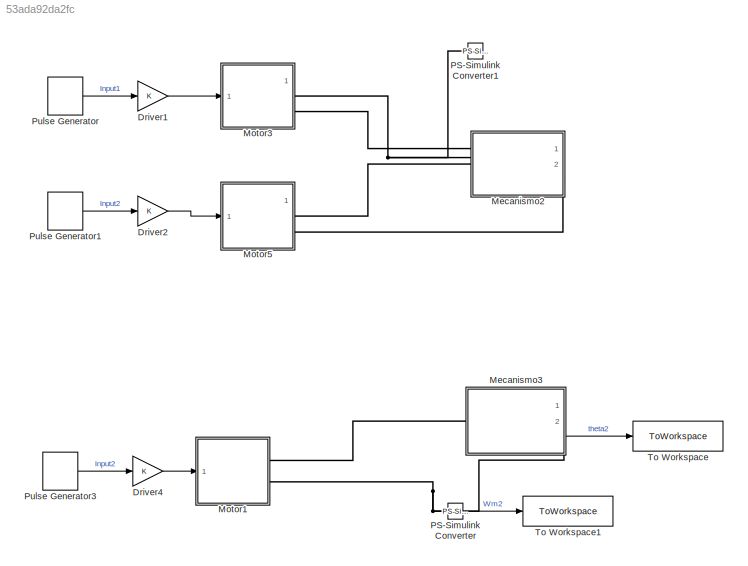
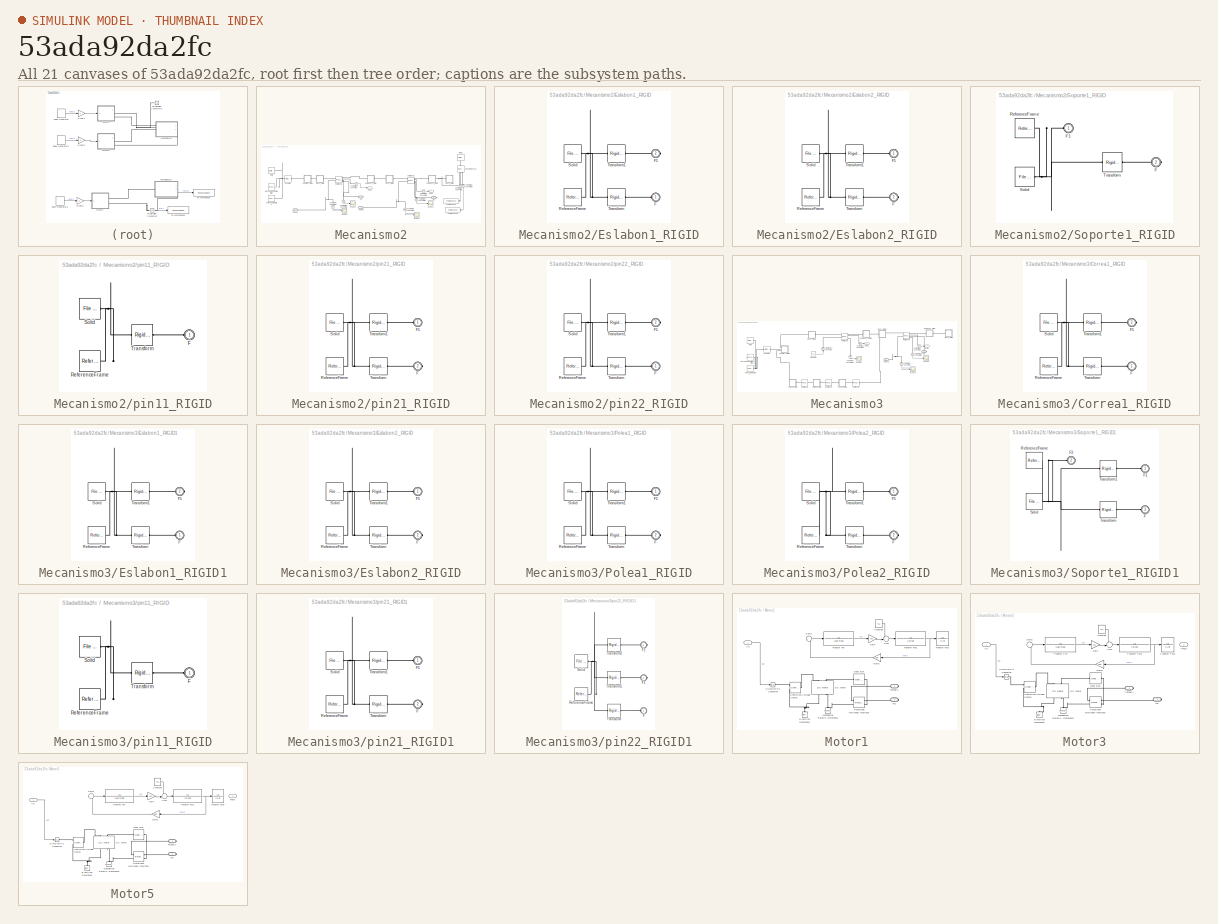
[diagram: thumbnail index - all 21 canvases of the model, root first then tree order]
MODEL slx_53ada92da2fc
KIND model
CONFIG AbsTol = auto
CONFIG EnableMultiTasking = off
CONFIG FixedStep = auto
CONFIG MaxStep = 0.20800000000000002
CONFIG MinStep = auto
CONFIG RelTol = 1e-4
CONFIG SampleTimeConstraint = Unconstrained
CONFIG SolverName = ode45
CONFIG StartTime = 0.0
CONFIG StopTime = 0.2
WORKSPACE source: external: MATLAB File  (data not in archive)
BLOCK [Gain] Driver1
  Commented = on
BLOCK [Gain] Driver2
  Commented = on
BLOCK [Gain] Driver4
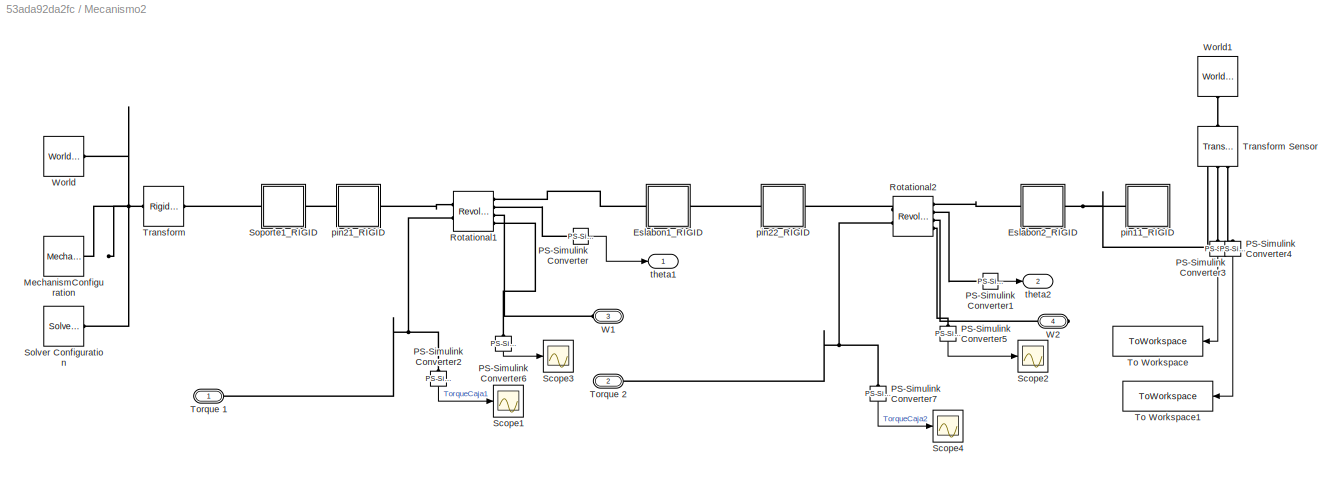
BLOCK [SubSystem] Mecanismo2
  Commented = on
  PortSchema = {"entries":[{"content":{"sides":[{"content":{"connectorIds":["LConn1","LConn2"]},"type":"ConnectorPlacement.EquallySpacedRectSide","uuid":"9c71d8fd-fbe0-4f3c-9468-4cd11dffeed7"},{"content":{"connectorIds":["Out1","Out2"],"side":"RIGHT"},"type":"ConnectorPlacement.EquallySpacedRectSide","uuid":"5c6e91e5-ecd9-462c-8e86-99a56f5a5e98"},{"content":{"connectorIds":["LConn3"],"side":"TOP"},"type":"Connec...<+419ch>
  Ports = [0, 2, 0, 0, 0, 3, 1]
  RequestExecContextInheritance = off
BLOCK [SubSystem] Mecanismo2/Eslabon1_RIGID
  Ports = [0, 0, 0, 0, 0, 1, 1]
  RequestExecContextInheritance = off
BLOCK [PMIOPort] Mecanismo2/Eslabon1_RIGID/F
  Side = Left
BLOCK [PMIOPort] Mecanismo2/Eslabon1_RIGID/F1
  Port = 2
  Side = Right
BLOCK [Reference] Mecanismo2/Eslabon1_RIGID/ReferenceFrame  REF=sm_lib/Frames and
Transforms/Reference
Frame
  Ports = [0, 0, 0, 0, 0, 0, 1]
  SourceBlock = sm_lib/Frames and\nTransforms/Reference\nFrame
  SourceProductBaseCode = MS
  SourceType = Reference\nFrame
BLOCK [Reference] Mecanismo2/Eslabon1_RIGID/Solid  REF=sm_lib/Body Elements/File Solid
  Ports = [0, 0, 0, 0, 0, 0, 1]
  SourceBlock = sm_lib/Body Elements/File Solid
  SourceProductBaseCode = MS
  SourceType = File Solid
BLOCK [Reference] Mecanismo2/Eslabon1_RIGID/Transform  REF=sm_lib/Frames and
Transforms/Rigid
Transform
  Ports = [0, 0, 0, 0, 0, 1, 1]
  SourceBlock = sm_lib/Frames and\nTransforms/Rigid\nTransform
  SourceProductBaseCode = MS
  SourceType = Rigid\nTransform
BLOCK [Reference] Mecanismo2/Eslabon1_RIGID/Transform1  REF=sm_lib/Frames and
Transforms/Rigid
Transform
  Ports = [0, 0, 0, 0, 0, 1, 1]
  SourceBlock = sm_lib/Frames and\nTransforms/Rigid\nTransform
  SourceProductBaseCode = MS
  SourceType = Rigid\nTransform
BLOCK [SubSystem] Mecanismo2/Eslabon2_RIGID
  Ports = [0, 0, 0, 0, 0, 1, 1]
  RequestExecContextInheritance = off
BLOCK [PMIOPort] Mecanismo2/Eslabon2_RIGID/F
  Port = 2
  Side = Right
BLOCK [PMIOPort] Mecanismo2/Eslabon2_RIGID/F1
  Side = Left
BLOCK [Reference] Mecanismo2/Eslabon2_RIGID/ReferenceFrame  REF=sm_lib/Frames and
Transforms/Reference
Frame
  Ports = [0, 0, 0, 0, 0, 0, 1]
  SourceBlock = sm_lib/Frames and\nTransforms/Reference\nFrame
  SourceProductBaseCode = MS
  SourceType = Reference\nFrame
BLOCK [Reference] Mecanismo2/Eslabon2_RIGID/Solid  REF=sm_lib/Body Elements/File Solid
  Ports = [0, 0, 0, 0, 0, 0, 1]
  SourceBlock = sm_lib/Body Elements/File Solid
  SourceProductBaseCode = MS
  SourceType = File Solid
BLOCK [Reference] Mecanismo2/Eslabon2_RIGID/Transform  REF=sm_lib/Frames and
Transforms/Rigid
Transform
  Ports = [0, 0, 0, 0, 0, 1, 1]
  SourceBlock = sm_lib/Frames and\nTransforms/Rigid\nTransform
  SourceProductBaseCode = MS
  SourceType = Rigid\nTransform
BLOCK [Reference] Mecanismo2/Eslabon2_RIGID/Transform1  REF=sm_lib/Frames and
Transforms/Rigid
Transform
  Ports = [0, 0, 0, 0, 0, 1, 1]
  SourceBlock = sm_lib/Frames and\nTransforms/Rigid\nTransform
  SourceProductBaseCode = MS
  SourceType = Rigid\nTransform
BLOCK [Reference] Mecanismo2/MechanismConfiguration  REF=sm_lib/Utilities/Mechanism
Configuration
  Ports = [0, 0, 0, 0, 0, 0, 1]
  SourceBlock = sm_lib/Utilities/Mechanism\nConfiguration
  SourceProductBaseCode = MS
  SourceType = Mechanism\nConfiguration
BLOCK [Reference] Mecanismo2/PS-Simulink Converter  REF=nesl_utility/PS-Simulink
Converter
  Ports = [0, 1, 0, 0, 0, 1]
  SourceBlock = nesl_utility/PS-Simulink\nConverter
  SourceProductBaseCode = PW,SS
  SourceType = PS-Simulink\nConverter
BLOCK [Reference] Mecanismo2/PS-Simulink Converter1  REF=nesl_utility/PS-Simulink
Converter
  Ports = [0, 1, 0, 0, 0, 1]
  SourceBlock = nesl_utility/PS-Simulink\nConverter
  SourceProductBaseCode = PW,SS
  SourceType = PS-Simulink\nConverter
BLOCK [Reference] Mecanismo2/PS-Simulink Converter2  REF=nesl_utility/PS-Simulink
Converter
  NameLocation = left
  Ports = [0, 1, 0, 0, 0, 1]
  SourceBlock = nesl_utility/PS-Simulink\nConverter
  SourceProductBaseCode = PW,SS
  SourceType = PS-Simulink\nConverter
BLOCK [Reference] Mecanismo2/PS-Simulink Converter3  REF=nesl_utility/PS-Simulink
Converter
  NameLocation = left
  Ports = [0, 1, 0, 0, 0, 1]
  SourceBlock = nesl_utility/PS-Simulink\nConverter
  SourceProductBaseCode = PW,SS
  SourceType = PS-Simulink\nConverter
BLOCK [Reference] Mecanismo2/PS-Simulink Converter4  REF=nesl_utility/PS-Simulink
Converter
  NameLocation = left
  Ports = [0, 1, 0, 0, 0, 1]
  SourceBlock = nesl_utility/PS-Simulink\nConverter
  SourceProductBaseCode = PW,SS
  SourceType = PS-Simulink\nConverter
BLOCK [Reference] Mecanismo2/PS-Simulink Converter5  REF=nesl_utility/PS-Simulink
Converter
  NameLocation = left
  Ports = [0, 1, 0, 0, 0, 1]
  SourceBlock = nesl_utility/PS-Simulink\nConverter
  SourceProductBaseCode = PW,SS
  SourceType = PS-Simulink\nConverter
BLOCK [Reference] Mecanismo2/PS-Simulink Converter6  REF=nesl_utility/PS-Simulink
Converter
  NameLocation = left
  Ports = [0, 1, 0, 0, 0, 1]
  SourceBlock = nesl_utility/PS-Simulink\nConverter
  SourceProductBaseCode = PW,SS
  SourceType = PS-Simulink\nConverter
BLOCK [Reference] Mecanismo2/PS-Simulink Converter7  REF=nesl_utility/PS-Simulink
Converter
  NameLocation = left
  Ports = [0, 1, 0, 0, 0, 1]
  SourceBlock = nesl_utility/PS-Simulink\nConverter
  SourceProductBaseCode = PW,SS
  SourceType = PS-Simulink\nConverter
BLOCK [Reference] Mecanismo2/Rotational1  REF=sm_lib/Joints/Revolute Joint
  Ports = [0, 0, 0, 0, 0, 2, 4]
  SourceBlock = sm_lib/Joints/Revolute Joint
  SourceProductBaseCode = MS
  SourceType = Revolute Joint
BLOCK [Reference] Mecanismo2/Rotational2  REF=sm_lib/Joints/Revolute Joint
  Ports = [0, 0, 0, 0, 0, 2, 4]
  SourceBlock = sm_lib/Joints/Revolute Joint
  SourceProductBaseCode = MS
  SourceType = Revolute Joint
BLOCK [Scope] Mecanismo2/Scope1
  Floating = off
  NumInputPorts = 1
  Ports = [1]
  ScopeSpecificationString = Simulink.scopes.TimeScopeBlockCfg('CurrentConfiguration', extmgr.ConfigurationSet(extmgr.Configuration('Core','General UI',true),extmgr.Configuration('Core','Source UI',true),extmgr.Configuration('Sources','WiredSimulink',true,'DataLoggingVariableName','ScopeData1'),extmgr.Configuration('Visuals','Time Domain',true,'SerializedDisplays',{struct('MinYLimReal','-12.39709','MaxYLimReal','13.11522','YL...<+1449ch>
BLOCK [Scope] Mecanismo2/Scope2
  Floating = off
  NumInputPorts = 1
  Ports = [1]
  ScopeSpecificationString = Simulink.scopes.TimeScopeBlockCfg('CurrentConfiguration', extmgr.ConfigurationSet(extmgr.Configuration('Core','General UI',true),extmgr.Configuration('Core','Source UI',true),extmgr.Configuration('Sources','WiredSimulink',true,'DataLoggingVariableName','ScopeData2'),extmgr.Configuration('Visuals','Time Domain',true,'SerializedDisplays',{struct('MinYLimReal','-0.05482','MaxYLimReal','0.08539','YLab...<+1381ch>
BLOCK [Scope] Mecanismo2/Scope3
  Floating = off
  NumInputPorts = 1
  Ports = [1]
  ScopeSpecificationString = Simulink.scopes.TimeScopeBlockCfg('CurrentConfiguration', extmgr.ConfigurationSet(extmgr.Configuration('Core','General UI',true),extmgr.Configuration('Core','Source UI',true),extmgr.Configuration('Sources','WiredSimulink',true,'DataLoggingVariableName','ScopeData3'),extmgr.Configuration('Visuals','Time Domain',true,'SerializedDisplays',{struct('MinYLimReal','-12.39709','MaxYLimReal','13.11522','YL...<+1460ch>
BLOCK [Scope] Mecanismo2/Scope4
  Floating = off
  NumInputPorts = 1
  Ports = [1]
  ScopeSpecificationString = Simulink.scopes.TimeScopeBlockCfg('CurrentConfiguration', extmgr.ConfigurationSet(extmgr.Configuration('Core','General UI',true),extmgr.Configuration('Core','Source UI',true),extmgr.Configuration('Sources','WiredSimulink',true,'DataLoggingVariableName','ScopeData2'),extmgr.Configuration('Visuals','Time Domain',true,'SerializedDisplays',{struct('MinYLimReal','-1.00000','MaxYLimReal','1.00000','YLab...<+1443ch>
BLOCK [Reference] Mecanismo2/Solver Configuration  REF=nesl_utility/Solver
Configuration
  Ports = [0, 0, 0, 0, 0, 0, 1]
  SourceBlock = nesl_utility/Solver\nConfiguration
  SourceProductBaseCode = PW,SS
  SourceType = Solver\nConfiguration
BLOCK [SubSystem] Mecanismo2/Soporte1_RIGID
  Ports = [0, 0, 0, 0, 0, 1, 1]
  RequestExecContextInheritance = off
BLOCK [PMIOPort] Mecanismo2/Soporte1_RIGID/F
  Port = 2
  Side = Right
BLOCK [PMIOPort] Mecanismo2/Soporte1_RIGID/F1
  Side = Left
BLOCK [Reference] Mecanismo2/Soporte1_RIGID/ReferenceFrame  REF=sm_lib/Frames and
Transforms/Reference
Frame
  Ports = [0, 0, 0, 0, 0, 0, 1]
  SourceBlock = sm_lib/Frames and\nTransforms/Reference\nFrame
  SourceProductBaseCode = MS
  SourceType = Reference\nFrame
BLOCK [Reference] Mecanismo2/Soporte1_RIGID/Solid  REF=sm_lib/Body Elements/File Solid
  Ports = [0, 0, 0, 0, 0, 0, 1]
  SourceBlock = sm_lib/Body Elements/File Solid
  SourceProductBaseCode = MS
  SourceType = File Solid
BLOCK [Reference] Mecanismo2/Soporte1_RIGID/Transform  REF=sm_lib/Frames and
Transforms/Rigid
Transform
  Ports = [0, 0, 0, 0, 0, 1, 1]
  SourceBlock = sm_lib/Frames and\nTransforms/Rigid\nTransform
  SourceProductBaseCode = MS
  SourceType = Rigid\nTransform
BLOCK [ToWorkspace] Mecanismo2/To Workspace
  FixptAsFi = on
  MaxDataPoints = inf
  NameLocation = top
  Ports = [1]
  SampleTime = -1
  SaveFormat = Timeseries
  VariableName = xsim
BLOCK [ToWorkspace] Mecanismo2/To Workspace1
  FixptAsFi = on
  MaxDataPoints = inf
  NameLocation = top
  Ports = [1]
  SampleTime = -1
  SaveFormat = Timeseries
  VariableName = ysim
BLOCK [PMIOPort] Mecanismo2/Torque 1
  Side = Left
BLOCK [PMIOPort] Mecanismo2/Torque 2
  Port = 2
  Side = Left
BLOCK [Reference] Mecanismo2/Transform  REF=sm_lib/Frames and
Transforms/Rigid
Transform
  Ports = [0, 0, 0, 0, 0, 1, 1]
  SourceBlock = sm_lib/Frames and\nTransforms/Rigid\nTransform
  SourceProductBaseCode = MS
  SourceType = Rigid\nTransform
BLOCK [Reference] Mecanismo2/Transform Sensor  REF=sm_lib/Frames and
Transforms/Transform
Sensor
  NameLocation = left
  Ports = [0, 0, 0, 0, 0, 1, 3]
  SourceBlock = sm_lib/Frames and\nTransforms/Transform\nSensor
  SourceProductBaseCode = MS
  SourceType = Transform\nSensor
BLOCK [PMIOPort] Mecanismo2/W1
  NameLocation = top
  Port = 3
  Side = Left
BLOCK [PMIOPort] Mecanismo2/W2
  NameLocation = top
  Port = 4
  Side = Right
BLOCK [Reference] Mecanismo2/World  REF=sm_lib/Frames and
Transforms/World Frame
  Ports = [0, 0, 0, 0, 0, 0, 1]
  SourceBlock = sm_lib/Frames and\nTransforms/World Frame
  SourceProductBaseCode = MS
  SourceType = World Frame
BLOCK [Reference] Mecanismo2/World1  REF=sm_lib/Frames and
Transforms/World Frame
  NameLocation = left
  Ports = [0, 0, 0, 0, 0, 0, 1]
  SourceBlock = sm_lib/Frames and\nTransforms/World Frame
  SourceProductBaseCode = MS
  SourceType = World Frame
BLOCK [SubSystem] Mecanismo2/pin11_RIGID
  Ports = [0, 0, 0, 0, 0, 1]
  RequestExecContextInheritance = off
BLOCK [PMIOPort] Mecanismo2/pin11_RIGID/F
  Side = Left
BLOCK [Reference] Mecanismo2/pin11_RIGID/ReferenceFrame  REF=sm_lib/Frames and
Transforms/Reference
Frame
  Ports = [0, 0, 0, 0, 0, 0, 1]
  SourceBlock = sm_lib/Frames and\nTransforms/Reference\nFrame
  SourceProductBaseCode = MS
  SourceType = Reference\nFrame
BLOCK [Reference] Mecanismo2/pin11_RIGID/Solid  REF=sm_lib/Body Elements/File Solid
  Ports = [0, 0, 0, 0, 0, 0, 1]
  SourceBlock = sm_lib/Body Elements/File Solid
  SourceProductBaseCode = MS
  SourceType = File Solid
BLOCK [Reference] Mecanismo2/pin11_RIGID/Transform  REF=sm_lib/Frames and
Transforms/Rigid
Transform
  Ports = [0, 0, 0, 0, 0, 1, 1]
  SourceBlock = sm_lib/Frames and\nTransforms/Rigid\nTransform
  SourceProductBaseCode = MS
  SourceType = Rigid\nTransform
BLOCK [SubSystem] Mecanismo2/pin21_RIGID
  Ports = [0, 0, 0, 0, 0, 1, 1]
  RequestExecContextInheritance = off
BLOCK [PMIOPort] Mecanismo2/pin21_RIGID/F
  Port = 2
  Side = Right
BLOCK [PMIOPort] Mecanismo2/pin21_RIGID/F1
  Side = Left
BLOCK [Reference] Mecanismo2/pin21_RIGID/ReferenceFrame  REF=sm_lib/Frames and
Transforms/Reference
Frame
  Ports = [0, 0, 0, 0, 0, 0, 1]
  SourceBlock = sm_lib/Frames and\nTransforms/Reference\nFrame
  SourceProductBaseCode = MS
  SourceType = Reference\nFrame
BLOCK [Reference] Mecanismo2/pin21_RIGID/Solid  REF=sm_lib/Body Elements/File Solid
  Ports = [0, 0, 0, 0, 0, 0, 1]
  SourceBlock = sm_lib/Body Elements/File Solid
  SourceProductBaseCode = MS
  SourceType = File Solid
BLOCK [Reference] Mecanismo2/pin21_RIGID/Transform  REF=sm_lib/Frames and
Transforms/Rigid
Transform
  Ports = [0, 0, 0, 0, 0, 1, 1]
  SourceBlock = sm_lib/Frames and\nTransforms/Rigid\nTransform
  SourceProductBaseCode = MS
  SourceType = Rigid\nTransform
BLOCK [Reference] Mecanismo2/pin21_RIGID/Transform1  REF=sm_lib/Frames and
Transforms/Rigid
Transform
  Ports = [0, 0, 0, 0, 0, 1, 1]
  SourceBlock = sm_lib/Frames and\nTransforms/Rigid\nTransform
  SourceProductBaseCode = MS
  SourceType = Rigid\nTransform
BLOCK [SubSystem] Mecanismo2/pin22_RIGID
  Ports = [0, 0, 0, 0, 0, 1, 1]
  RequestExecContextInheritance = off
BLOCK [PMIOPort] Mecanismo2/pin22_RIGID/F
  Side = Left
BLOCK [PMIOPort] Mecanismo2/pin22_RIGID/F1
  Port = 2
  Side = Right
BLOCK [Reference] Mecanismo2/pin22_RIGID/ReferenceFrame  REF=sm_lib/Frames and
Transforms/Reference
Frame
  Ports = [0, 0, 0, 0, 0, 0, 1]
  SourceBlock = sm_lib/Frames and\nTransforms/Reference\nFrame
  SourceProductBaseCode = MS
  SourceType = Reference\nFrame
BLOCK [Reference] Mecanismo2/pin22_RIGID/Solid  REF=sm_lib/Body Elements/File Solid
  Ports = [0, 0, 0, 0, 0, 0, 1]
  SourceBlock = sm_lib/Body Elements/File Solid
  SourceProductBaseCode = MS
  SourceType = File Solid
BLOCK [Reference] Mecanismo2/pin22_RIGID/Transform  REF=sm_lib/Frames and
Transforms/Rigid
Transform
  Ports = [0, 0, 0, 0, 0, 1, 1]
  SourceBlock = sm_lib/Frames and\nTransforms/Rigid\nTransform
  SourceProductBaseCode = MS
  SourceType = Rigid\nTransform
BLOCK [Reference] Mecanismo2/pin22_RIGID/Transform1  REF=sm_lib/Frames and
Transforms/Rigid
Transform
  Ports = [0, 0, 0, 0, 0, 1, 1]
  SourceBlock = sm_lib/Frames and\nTransforms/Rigid\nTransform
  SourceProductBaseCode = MS
  SourceType = Rigid\nTransform
BLOCK [Outport] Mecanismo2/theta1
BLOCK [Outport] Mecanismo2/theta2
  Port = 2
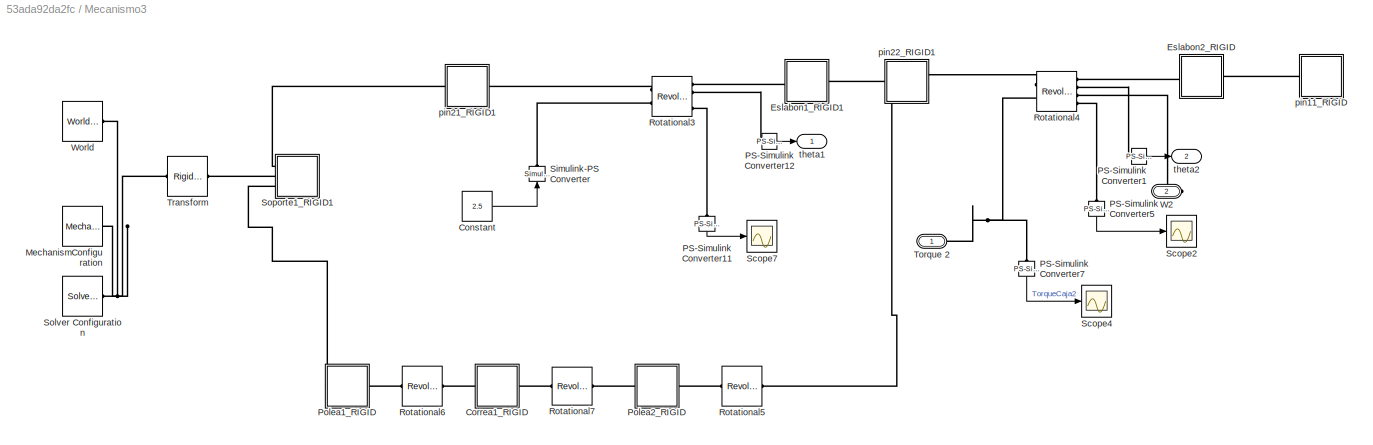
BLOCK [SubSystem] Mecanismo3
  PortSchema = {"entries":[{"content":{"sides":[{"content":{"connectorIds":["LConn1"]},"type":"ConnectorPlacement.EquallySpacedRectSide","uuid":"02f3228b-84f6-41b8-96a8-1160db6c1dba"},{"content":{"connectorIds":["Out1","Out2"],"side":"RIGHT"},"type":"ConnectorPlacement.EquallySpacedRectSide","uuid":"46c86bd6-6d26-4c5c-b634-3c72118c39e9"},{"content":{"connectorIds":[],"side":"TOP"},"type":"ConnectorPlacement.Equa...<+402ch>
  Ports = [0, 2, 0, 0, 0, 1, 1]
  RequestExecContextInheritance = off
BLOCK [Constant] Mecanismo3/Constant
  Value = 2.5
BLOCK [SubSystem] Mecanismo3/Correa1_RIGID
  Ports = [0, 0, 0, 0, 0, 1, 1]
  RequestExecContextInheritance = off
BLOCK [PMIOPort] Mecanismo3/Correa1_RIGID/F
  Side = Left
BLOCK [PMIOPort] Mecanismo3/Correa1_RIGID/F1
  Port = 2
  Side = Right
BLOCK [Reference] Mecanismo3/Correa1_RIGID/ReferenceFrame  REF=sm_lib/Frames and
Transforms/Reference
Frame
  Ports = [0, 0, 0, 0, 0, 0, 1]
  SourceBlock = sm_lib/Frames and\nTransforms/Reference\nFrame
  SourceProductBaseCode = MS
  SourceType = Reference\nFrame
BLOCK [Reference] Mecanismo3/Correa1_RIGID/Solid  REF=sm_lib/Body Elements/File Solid
  Ports = [0, 0, 0, 0, 0, 0, 1]
  SourceBlock = sm_lib/Body Elements/File Solid
  SourceProductBaseCode = MS
  SourceType = File Solid
BLOCK [Reference] Mecanismo3/Correa1_RIGID/Transform  REF=sm_lib/Frames and
Transforms/Rigid
Transform
  Ports = [0, 0, 0, 0, 0, 1, 1]
  SourceBlock = sm_lib/Frames and\nTransforms/Rigid\nTransform
  SourceProductBaseCode = MS
  SourceType = Rigid\nTransform
BLOCK [Reference] Mecanismo3/Correa1_RIGID/Transform1  REF=sm_lib/Frames and
Transforms/Rigid
Transform
  Ports = [0, 0, 0, 0, 0, 1, 1]
  SourceBlock = sm_lib/Frames and\nTransforms/Rigid\nTransform
  SourceProductBaseCode = MS
  SourceType = Rigid\nTransform
BLOCK [SubSystem] Mecanismo3/Eslabon1_RIGID1
  Ports = [0, 0, 0, 0, 0, 1, 1]
  RequestExecContextInheritance = off
BLOCK [PMIOPort] Mecanismo3/Eslabon1_RIGID1/F
  Side = Left
BLOCK [PMIOPort] Mecanismo3/Eslabon1_RIGID1/F1
  Port = 2
  Side = Right
BLOCK [Reference] Mecanismo3/Eslabon1_RIGID1/ReferenceFrame  REF=sm_lib/Frames and
Transforms/Reference
Frame
  Ports = [0, 0, 0, 0, 0, 0, 1]
  SourceBlock = sm_lib/Frames and\nTransforms/Reference\nFrame
  SourceProductBaseCode = MS
  SourceType = Reference\nFrame
BLOCK [Reference] Mecanismo3/Eslabon1_RIGID1/Solid  REF=sm_lib/Body Elements/File Solid
  Ports = [0, 0, 0, 0, 0, 0, 1]
  SourceBlock = sm_lib/Body Elements/File Solid
  SourceProductBaseCode = MS
  SourceType = File Solid
BLOCK [Reference] Mecanismo3/Eslabon1_RIGID1/Transform  REF=sm_lib/Frames and
Transforms/Rigid
Transform
  Ports = [0, 0, 0, 0, 0, 1, 1]
  SourceBlock = sm_lib/Frames and\nTransforms/Rigid\nTransform
  SourceProductBaseCode = MS
  SourceType = Rigid\nTransform
BLOCK [Reference] Mecanismo3/Eslabon1_RIGID1/Transform1  REF=sm_lib/Frames and
Transforms/Rigid
Transform
  Ports = [0, 0, 0, 0, 0, 1, 1]
  SourceBlock = sm_lib/Frames and\nTransforms/Rigid\nTransform
  SourceProductBaseCode = MS
  SourceType = Rigid\nTransform
BLOCK [SubSystem] Mecanismo3/Eslabon2_RIGID
  Ports = [0, 0, 0, 0, 0, 1, 1]
  RequestExecContextInheritance = off
BLOCK [PMIOPort] Mecanismo3/Eslabon2_RIGID/F
  Port = 2
  Side = Right
BLOCK [PMIOPort] Mecanismo3/Eslabon2_RIGID/F1
  Side = Left
BLOCK [Reference] Mecanismo3/Eslabon2_RIGID/ReferenceFrame  REF=sm_lib/Frames and
Transforms/Reference
Frame
  Ports = [0, 0, 0, 0, 0, 0, 1]
  SourceBlock = sm_lib/Frames and\nTransforms/Reference\nFrame
  SourceProductBaseCode = MS
  SourceType = Reference\nFrame
BLOCK [Reference] Mecanismo3/Eslabon2_RIGID/Solid  REF=sm_lib/Body Elements/File Solid
  Ports = [0, 0, 0, 0, 0, 0, 1]
  SourceBlock = sm_lib/Body Elements/File Solid
  SourceProductBaseCode = MS
  SourceType = File Solid
BLOCK [Reference] Mecanismo3/Eslabon2_RIGID/Transform  REF=sm_lib/Frames and
Transforms/Rigid
Transform
  Ports = [0, 0, 0, 0, 0, 1, 1]
  SourceBlock = sm_lib/Frames and\nTransforms/Rigid\nTransform
  SourceProductBaseCode = MS
  SourceType = Rigid\nTransform
BLOCK [Reference] Mecanismo3/Eslabon2_RIGID/Transform1  REF=sm_lib/Frames and
Transforms/Rigid
Transform
  Ports = [0, 0, 0, 0, 0, 1, 1]
  SourceBlock = sm_lib/Frames and\nTransforms/Rigid\nTransform
  SourceProductBaseCode = MS
  SourceType = Rigid\nTransform
BLOCK [Reference] Mecanismo3/MechanismConfiguration  REF=sm_lib/Utilities/Mechanism
Configuration
  Ports = [0, 0, 0, 0, 0, 0, 1]
  SourceBlock = sm_lib/Utilities/Mechanism\nConfiguration
  SourceProductBaseCode = MS
  SourceType = Mechanism\nConfiguration
BLOCK [Reference] Mecanismo3/PS-Simulink Converter1  REF=nesl_utility/PS-Simulink
Converter
  Ports = [0, 1, 0, 0, 0, 1]
  SourceBlock = nesl_utility/PS-Simulink\nConverter
  SourceProductBaseCode = PW,SS
  SourceType = PS-Simulink\nConverter
BLOCK [Reference] Mecanismo3/PS-Simulink Converter11  REF=nesl_utility/PS-Simulink
Converter
  NameLocation = left
  Ports = [0, 1, 0, 0, 0, 1]
  SourceBlock = nesl_utility/PS-Simulink\nConverter
  SourceProductBaseCode = PW,SS
  SourceType = PS-Simulink\nConverter
BLOCK [Reference] Mecanismo3/PS-Simulink Converter12  REF=nesl_utility/PS-Simulink
Converter
  Ports = [0, 1, 0, 0, 0, 1]
  SourceBlock = nesl_utility/PS-Simulink\nConverter
  SourceProductBaseCode = PW,SS
  SourceType = PS-Simulink\nConverter
BLOCK [Reference] Mecanismo3/PS-Simulink Converter5  REF=nesl_utility/PS-Simulink
Converter
  NameLocation = left
  Ports = [0, 1, 0, 0, 0, 1]
  SourceBlock = nesl_utility/PS-Simulink\nConverter
  SourceProductBaseCode = PW,SS
  SourceType = PS-Simulink\nConverter
BLOCK [Reference] Mecanismo3/PS-Simulink Converter7  REF=nesl_utility/PS-Simulink
Converter
  NameLocation = left
  Ports = [0, 1, 0, 0, 0, 1]
  SourceBlock = nesl_utility/PS-Simulink\nConverter
  SourceProductBaseCode = PW,SS
  SourceType = PS-Simulink\nConverter
BLOCK [SubSystem] Mecanismo3/Polea1_RIGID
  Ports = [0, 0, 0, 0, 0, 1, 1]
  RequestExecContextInheritance = off
BLOCK [PMIOPort] Mecanismo3/Polea1_RIGID/F
  Port = 2
  Side = Right
BLOCK [PMIOPort] Mecanismo3/Polea1_RIGID/F1
  Side = Left
BLOCK [Reference] Mecanismo3/Polea1_RIGID/ReferenceFrame  REF=sm_lib/Frames and
Transforms/Reference
Frame
  Ports = [0, 0, 0, 0, 0, 0, 1]
  SourceBlock = sm_lib/Frames and\nTransforms/Reference\nFrame
  SourceProductBaseCode = MS
  SourceType = Reference\nFrame
BLOCK [Reference] Mecanismo3/Polea1_RIGID/Solid  REF=sm_lib/Body Elements/File Solid
  Ports = [0, 0, 0, 0, 0, 0, 1]
  SourceBlock = sm_lib/Body Elements/File Solid
  SourceProductBaseCode = MS
  SourceType = File Solid
BLOCK [Reference] Mecanismo3/Polea1_RIGID/Transform  REF=sm_lib/Frames and
Transforms/Rigid
Transform
  Ports = [0, 0, 0, 0, 0, 1, 1]
  SourceBlock = sm_lib/Frames and\nTransforms/Rigid\nTransform
  SourceProductBaseCode = MS
  SourceType = Rigid\nTransform
BLOCK [Reference] Mecanismo3/Polea1_RIGID/Transform1  REF=sm_lib/Frames and
Transforms/Rigid
Transform
  Ports = [0, 0, 0, 0, 0, 1, 1]
  SourceBlock = sm_lib/Frames and\nTransforms/Rigid\nTransform
  SourceProductBaseCode = MS
  SourceType = Rigid\nTransform
BLOCK [SubSystem] Mecanismo3/Polea2_RIGID
  NameLocation = top
  Ports = [0, 0, 0, 0, 0, 1, 1]
  RequestExecContextInheritance = off
BLOCK [PMIOPort] Mecanismo3/Polea2_RIGID/F
  Port = 2
  Side = Right
BLOCK [PMIOPort] Mecanismo3/Polea2_RIGID/F1
  Side = Left
BLOCK [Reference] Mecanismo3/Polea2_RIGID/ReferenceFrame  REF=sm_lib/Frames and
Transforms/Reference
Frame
  Ports = [0, 0, 0, 0, 0, 0, 1]
  SourceBlock = sm_lib/Frames and\nTransforms/Reference\nFrame
  SourceProductBaseCode = MS
  SourceType = Reference\nFrame
BLOCK [Reference] Mecanismo3/Polea2_RIGID/Solid  REF=sm_lib/Body Elements/File Solid
  Ports = [0, 0, 0, 0, 0, 0, 1]
  SourceBlock = sm_lib/Body Elements/File Solid
  SourceProductBaseCode = MS
  SourceType = File Solid
BLOCK [Reference] Mecanismo3/Polea2_RIGID/Transform  REF=sm_lib/Frames and
Transforms/Rigid
Transform
  Ports = [0, 0, 0, 0, 0, 1, 1]
  SourceBlock = sm_lib/Frames and\nTransforms/Rigid\nTransform
  SourceProductBaseCode = MS
  SourceType = Rigid\nTransform
BLOCK [Reference] Mecanismo3/Polea2_RIGID/Transform1  REF=sm_lib/Frames and
Transforms/Rigid
Transform
  Ports = [0, 0, 0, 0, 0, 1, 1]
  SourceBlock = sm_lib/Frames and\nTransforms/Rigid\nTransform
  SourceProductBaseCode = MS
  SourceType = Rigid\nTransform
BLOCK [Reference] Mecanismo3/Rotational3  REF=sm_lib/Joints/Revolute Joint
  Ports = [0, 0, 0, 0, 0, 2, 4]
  SourceBlock = sm_lib/Joints/Revolute Joint
  SourceProductBaseCode = MS
  SourceType = Revolute Joint
BLOCK [Reference] Mecanismo3/Rotational4  REF=sm_lib/Joints/Revolute Joint
  Ports = [0, 0, 0, 0, 0, 2, 4]
  SourceBlock = sm_lib/Joints/Revolute Joint
  SourceProductBaseCode = MS
  SourceType = Revolute Joint
BLOCK [Reference] Mecanismo3/Rotational5  REF=sm_lib/Joints/Revolute Joint
  NameLocation = top
  Ports = [0, 0, 0, 0, 0, 1, 1]
  SourceBlock = sm_lib/Joints/Revolute Joint
  SourceProductBaseCode = MS
  SourceType = Revolute Joint
BLOCK [Reference] Mecanismo3/Rotational6  REF=sm_lib/Joints/Revolute Joint
  Ports = [0, 0, 0, 0, 0, 1, 1]
  SourceBlock = sm_lib/Joints/Revolute Joint
  SourceProductBaseCode = MS
  SourceType = Revolute Joint
BLOCK [Reference] Mecanismo3/Rotational7  REF=sm_lib/Joints/Revolute Joint
  NameLocation = top
  Ports = [0, 0, 0, 0, 0, 1, 1]
  SourceBlock = sm_lib/Joints/Revolute Joint
  SourceProductBaseCode = MS
  SourceType = Revolute Joint
BLOCK [Scope] Mecanismo3/Scope2
  Floating = off
  NumInputPorts = 1
  Ports = [1]
  ScopeSpecificationString = Simulink.scopes.TimeScopeBlockCfg('CurrentConfiguration', extmgr.ConfigurationSet(extmgr.Configuration('Core','General UI',true),extmgr.Configuration('Core','Source UI',true),extmgr.Configuration('Sources','WiredSimulink',true,'DataLoggingVariableName','ScopeData1'),extmgr.Configuration('Visuals','Time Domain',true,'SerializedDisplays',{struct('MinYLimReal','-0.05482','MaxYLimReal','0.08539','YLab...<+1381ch>
BLOCK [Scope] Mecanismo3/Scope4
  Floating = off
  NumInputPorts = 1
  Ports = [1]
  ScopeSpecificationString = Simulink.scopes.TimeScopeBlockCfg('CurrentConfiguration', extmgr.ConfigurationSet(extmgr.Configuration('Core','General UI',true),extmgr.Configuration('Core','Source UI',true),extmgr.Configuration('Sources','WiredSimulink',true,'DataLoggingVariableName','ScopeData2'),extmgr.Configuration('Visuals','Time Domain',true,'SerializedDisplays',{struct('MinYLimReal','-1.00000','MaxYLimReal','1.00000','YLab...<+1443ch>
BLOCK [Scope] Mecanismo3/Scope7
  Floating = off
  NumInputPorts = 1
  Ports = [1]
  ScopeSpecificationString = Simulink.scopes.TimeScopeBlockCfg('CurrentConfiguration', extmgr.ConfigurationSet(extmgr.Configuration('Core','General UI',true),extmgr.Configuration('Core','Source UI',true),extmgr.Configuration('Sources','WiredSimulink',true,'DataLoggingVariableName','ScopeData4'),extmgr.Configuration('Visuals','Time Domain',true,'SerializedDisplays',{struct('MinYLimReal','-12.39709','MaxYLimReal','13.11522','YL...<+1460ch>
BLOCK [Reference] Mecanismo3/Simulink-PS Converter  REF=nesl_utility/Simulink-PS
Converter
  NameLocation = right
  Ports = [1, 0, 0, 0, 0, 0, 1]
  SourceBlock = nesl_utility/Simulink-PS\nConverter
  SourceProductBaseCode = PW,SS
  SourceType = Simulink-PS\nConverter
BLOCK [Reference] Mecanismo3/Solver Configuration  REF=nesl_utility/Solver
Configuration
  Ports = [0, 0, 0, 0, 0, 0, 1]
  SourceBlock = nesl_utility/Solver\nConfiguration
  SourceProductBaseCode = PW,SS
  SourceType = Solver\nConfiguration
BLOCK [SubSystem] Mecanismo3/Soporte1_RIGID1
  Ports = [0, 0, 0, 0, 0, 3]
  RequestExecContextInheritance = off
BLOCK [PMIOPort] Mecanismo3/Soporte1_RIGID1/F
  Port = 3
  Side = Left
BLOCK [PMIOPort] Mecanismo3/Soporte1_RIGID1/F1
  Side = Left
BLOCK [PMIOPort] Mecanismo3/Soporte1_RIGID1/F2
  Port = 2
  Side = Left
BLOCK [Reference] Mecanismo3/Soporte1_RIGID1/ReferenceFrame  REF=sm_lib/Frames and
Transforms/Reference
Frame
  Ports = [0, 0, 0, 0, 0, 0, 1]
  SourceBlock = sm_lib/Frames and\nTransforms/Reference\nFrame
  SourceProductBaseCode = MS
  SourceType = Reference\nFrame
BLOCK [Reference] Mecanismo3/Soporte1_RIGID1/Solid  REF=sm_lib/Body Elements/File Solid
  Ports = [0, 0, 0, 0, 0, 0, 1]
  SourceBlock = sm_lib/Body Elements/File Solid
  SourceProductBaseCode = MS
  SourceType = File Solid
BLOCK [Reference] Mecanismo3/Soporte1_RIGID1/Transform  REF=sm_lib/Frames and
Transforms/Rigid
Transform
  Ports = [0, 0, 0, 0, 0, 1, 1]
  SourceBlock = sm_lib/Frames and\nTransforms/Rigid\nTransform
  SourceProductBaseCode = MS
  SourceType = Rigid\nTransform
BLOCK [Reference] Mecanismo3/Soporte1_RIGID1/Transform1  REF=sm_lib/Frames and
Transforms/Rigid
Transform
  Ports = [0, 0, 0, 0, 0, 1, 1]
  SourceBlock = sm_lib/Frames and\nTransforms/Rigid\nTransform
  SourceProductBaseCode = MS
  SourceType = Rigid\nTransform
BLOCK [PMIOPort] Mecanismo3/Torque 2
  Side = Left
BLOCK [Reference] Mecanismo3/Transform  REF=sm_lib/Frames and
Transforms/Rigid
Transform
  Ports = [0, 0, 0, 0, 0, 1, 1]
  SourceBlock = sm_lib/Frames and\nTransforms/Rigid\nTransform
  SourceProductBaseCode = MS
  SourceType = Rigid\nTransform
BLOCK [PMIOPort] Mecanismo3/W2
  NameLocation = top
  Port = 2
  Side = Right
BLOCK [Reference] Mecanismo3/World  REF=sm_lib/Frames and
Transforms/World Frame
  Ports = [0, 0, 0, 0, 0, 0, 1]
  SourceBlock = sm_lib/Frames and\nTransforms/World Frame
  SourceProductBaseCode = MS
  SourceType = World Frame
BLOCK [SubSystem] Mecanismo3/pin11_RIGID
  Ports = [0, 0, 0, 0, 0, 1]
  RequestExecContextInheritance = off
BLOCK [PMIOPort] Mecanismo3/pin11_RIGID/F
  Side = Left
BLOCK [Reference] Mecanismo3/pin11_RIGID/ReferenceFrame  REF=sm_lib/Frames and
Transforms/Reference
Frame
  Ports = [0, 0, 0, 0, 0, 0, 1]
  SourceBlock = sm_lib/Frames and\nTransforms/Reference\nFrame
  SourceProductBaseCode = MS
  SourceType = Reference\nFrame
BLOCK [Reference] Mecanismo3/pin11_RIGID/Solid  REF=sm_lib/Body Elements/File Solid
  Ports = [0, 0, 0, 0, 0, 0, 1]
  SourceBlock = sm_lib/Body Elements/File Solid
  SourceProductBaseCode = MS
  SourceType = File Solid
BLOCK [Reference] Mecanismo3/pin11_RIGID/Transform  REF=sm_lib/Frames and
Transforms/Rigid
Transform
  Ports = [0, 0, 0, 0, 0, 1, 1]
  SourceBlock = sm_lib/Frames and\nTransforms/Rigid\nTransform
  SourceProductBaseCode = MS
  SourceType = Rigid\nTransform
BLOCK [SubSystem] Mecanismo3/pin21_RIGID1
  Ports = [0, 0, 0, 0, 0, 1, 1]
  RequestExecContextInheritance = off
BLOCK [PMIOPort] Mecanismo3/pin21_RIGID1/F
  Port = 2
  Side = Right
BLOCK [PMIOPort] Mecanismo3/pin21_RIGID1/F1
  Side = Left
BLOCK [Reference] Mecanismo3/pin21_RIGID1/ReferenceFrame  REF=sm_lib/Frames and
Transforms/Reference
Frame
  Ports = [0, 0, 0, 0, 0, 0, 1]
  SourceBlock = sm_lib/Frames and\nTransforms/Reference\nFrame
  SourceProductBaseCode = MS
  SourceType = Reference\nFrame
BLOCK [Reference] Mecanismo3/pin21_RIGID1/Solid  REF=sm_lib/Body Elements/File Solid
  Ports = [0, 0, 0, 0, 0, 0, 1]
  SourceBlock = sm_lib/Body Elements/File Solid
  SourceProductBaseCode = MS
  SourceType = File Solid
BLOCK [Reference] Mecanismo3/pin21_RIGID1/Transform  REF=sm_lib/Frames and
Transforms/Rigid
Transform
  Ports = [0, 0, 0, 0, 0, 1, 1]
  SourceBlock = sm_lib/Frames and\nTransforms/Rigid\nTransform
  SourceProductBaseCode = MS
  SourceType = Rigid\nTransform
BLOCK [Reference] Mecanismo3/pin21_RIGID1/Transform1  REF=sm_lib/Frames and
Transforms/Rigid
Transform
  Ports = [0, 0, 0, 0, 0, 1, 1]
  SourceBlock = sm_lib/Frames and\nTransforms/Rigid\nTransform
  SourceProductBaseCode = MS
  SourceType = Rigid\nTransform
BLOCK [SubSystem] Mecanismo3/pin22_RIGID1
  PortSchema = {"entries":[{"content":{"sides":[{"content":{"connectorIds":["LConn1"]},"type":"ConnectorPlacement.EquallySpacedRectSide","uuid":"0c2e1053-8513-4509-bcb1-ddfb4a2ca896"},{"content":{"connectorIds":["RConn1"],"side":"RIGHT"},"type":"ConnectorPlacement.EquallySpacedRectSide","uuid":"556e465f-349c-4c01-b329-d5b95ce943a7"},{"content":{"connectorIds":[],"side":"TOP"},"type":"ConnectorPlacement.EquallySp...<+397ch>
  Ports = [0, 0, 0, 0, 0, 1, 2]
  RequestExecContextInheritance = off
BLOCK [PMIOPort] Mecanismo3/pin22_RIGID1/F
  Side = Left
BLOCK [PMIOPort] Mecanismo3/pin22_RIGID1/F1
  Port = 2
  Side = Right
BLOCK [PMIOPort] Mecanismo3/pin22_RIGID1/F2
  Port = 3
  Side = Right
BLOCK [Reference] Mecanismo3/pin22_RIGID1/ReferenceFrame  REF=sm_lib/Frames and
Transforms/Reference
Frame
  Ports = [0, 0, 0, 0, 0, 0, 1]
  SourceBlock = sm_lib/Frames and\nTransforms/Reference\nFrame
  SourceProductBaseCode = MS
  SourceType = Reference\nFrame
BLOCK [Reference] Mecanismo3/pin22_RIGID1/Solid  REF=sm_lib/Body Elements/File Solid
  Ports = [0, 0, 0, 0, 0, 0, 1]
  SourceBlock = sm_lib/Body Elements/File Solid
  SourceProductBaseCode = MS
  SourceType = File Solid
BLOCK [Reference] Mecanismo3/pin22_RIGID1/Transform  REF=sm_lib/Frames and
Transforms/Rigid
Transform
  Ports = [0, 0, 0, 0, 0, 1, 1]
  SourceBlock = sm_lib/Frames and\nTransforms/Rigid\nTransform
  SourceProductBaseCode = MS
  SourceType = Rigid\nTransform
BLOCK [Reference] Mecanismo3/pin22_RIGID1/Transform1  REF=sm_lib/Frames and
Transforms/Rigid
Transform
  Ports = [0, 0, 0, 0, 0, 1, 1]
  SourceBlock = sm_lib/Frames and\nTransforms/Rigid\nTransform
  SourceProductBaseCode = MS
  SourceType = Rigid\nTransform
BLOCK [Reference] Mecanismo3/pin22_RIGID1/Transform2  REF=sm_lib/Frames and
Transforms/Rigid
Transform
  Ports = [0, 0, 0, 0, 0, 1, 1]
  SourceBlock = sm_lib/Frames and\nTransforms/Rigid\nTransform
  SourceProductBaseCode = MS
  SourceType = Rigid\nTransform
BLOCK [Outport] Mecanismo3/theta1
BLOCK [Outport] Mecanismo3/theta2
  Port = 2
BLOCK [SubSystem] Motor1
  Ports = [1, 0, 0, 0, 0, 0, 2]
  RequestExecContextInheritance = off
BLOCK [Constant] Motor1/Constant
  Commented = on
  Value = TL2
BLOCK [Reference] Motor1/Controlled Voltage Source  REF=fl_lib/Electrical/Electrical Sources/Controlled Voltage
Source
  Ports = [0, 0, 0, 0, 0, 1, 2]
  SourceBlock = fl_lib/Electrical/Electrical Sources/Controlled Voltage\nSource
  SourceProductBaseCode = SS
  SourceType = Controlled Voltage\nSource
BLOCK [Reference] Motor1/DC Motor  REF=ee_lib/Electromechanical/Brushed Motors/DC Motor
  NameLocation = right
  Ports = [0, 0, 0, 0, 0, 2, 2]
  SourceBlock = ee_lib/Electromechanical/Brushed Motors/DC Motor
  SourceProductBaseCode = PS
  SourceType = DC Motor
BLOCK [Reference] Motor1/Electrical Reference  REF=fl_lib/Electrical/Electrical Elements/Electrical Reference
  NameLocation = right
  Ports = [0, 0, 0, 0, 0, 1]
  SourceBlock = fl_lib/Electrical/Electrical Elements/Electrical Reference
  SourceProductBaseCode = SS
  SourceType = Electrical Reference
BLOCK [Gain] Motor1/Gain
  Commented = on
  Gain = Kt2
BLOCK [Gain] Motor1/Gain1
  Commented = on
  Gain = Kb2
BLOCK [Reference] Motor1/Gear Box  REF=fl_lib/Mechanical/Mechanisms/Gear Box
  Ports = [0, 0, 0, 0, 0, 1, 1]
  SourceBlock = fl_lib/Mechanical/Mechanisms/Gear Box
  SourceProductBaseCode = SS
  SourceType = Gear Box
BLOCK [Reference] Motor1/Mechanical Rotational Reference  REF=fl_lib/Mechanical/Rotational Elements/Mechanical
Rotational Reference
  NameLocation = right
  Ports = [0, 0, 0, 0, 0, 1]
  SourceBlock = fl_lib/Mechanical/Rotational Elements/Mechanical\nRotational Reference
  SourceProductBaseCode = SS
  SourceType = Mechanical\nRotational Reference
BLOCK [Reference] Motor1/Rotational Multibody Interface  REF=fl_lib/Mechanical/Multibody Interfaces/Rotational Multibody
Interface
  Ports = [0, 0, 0, 0, 0, 2, 2]
  SourceBlock = fl_lib/Mechanical/Multibody Interfaces/Rotational Multibody\nInterface
  SourceProductBaseCode = SS
  SourceType = Rotational Multibody\nInterface
BLOCK [Reference] Motor1/Simulink-PS Converter  REF=nesl_utility/Simulink-PS
Converter
  Ports = [1, 0, 0, 0, 0, 0, 1]
  SourceBlock = nesl_utility/Simulink-PS\nConverter
  SourceProductBaseCode = PW,SS
  SourceType = Simulink-PS\nConverter
BLOCK [Sum] Motor1/Sum
  Commented = on
  Inputs = ++|
  Ports = [2, 1]
BLOCK [Sum] Motor1/Sum1
  Commented = on
  Inputs = |+-
  Ports = [2, 1]
BLOCK [PMIOPort] Motor1/Torque 2
  NameLocation = top
  Side = Right
BLOCK [TransferFcn] Motor1/Transfer Fcn
  Commented = on
  Denominator = [La2 Ra2]
BLOCK [TransferFcn] Motor1/Transfer Fcn1
  Commented = on
  Denominator = [J2 b2]
BLOCK [TransferFcn] Motor1/Transfer Fcn2
  Commented = on
  Denominator = [1 0]
BLOCK [Inport] Motor1/Va
BLOCK [PMIOPort] Motor1/W2
  NameLocation = top
  Port = 2
  Side = Right
BLOCK [SubSystem] Motor3
  Commented = on
  Ports = [1, 1, 0, 0, 0, 0, 2]
  RequestExecContextInheritance = off
BLOCK [Constant] Motor3/Constant
  Commented = on
  Value = TL1
BLOCK [Reference] Motor3/Controlled Voltage Source  REF=fl_lib/Electrical/Electrical Sources/Controlled Voltage
Source
  Ports = [0, 0, 0, 0, 0, 1, 2]
  SourceBlock = fl_lib/Electrical/Electrical Sources/Controlled Voltage\nSource
  SourceProductBaseCode = SS
  SourceType = Controlled Voltage\nSource
BLOCK [Reference] Motor3/DC Motor  REF=ee_lib/Electromechanical/Brushed Motors/DC Motor
  NameLocation = right
  Ports = [0, 0, 0, 0, 0, 2, 2]
  SourceBlock = ee_lib/Electromechanical/Brushed Motors/DC Motor
  SourceProductBaseCode = PS
  SourceType = DC Motor
BLOCK [Reference] Motor3/Electrical Reference  REF=fl_lib/Electrical/Electrical Elements/Electrical Reference
  NameLocation = right
  Ports = [0, 0, 0, 0, 0, 1]
  SourceBlock = fl_lib/Electrical/Electrical Elements/Electrical Reference
  SourceProductBaseCode = SS
  SourceType = Electrical Reference
BLOCK [Gain] Motor3/Gain
  Commented = on
  Gain = Kt1
BLOCK [Gain] Motor3/Gain1
  Commented = on
  Gain = Kb1
BLOCK [Reference] Motor3/Gear Box  REF=fl_lib/Mechanical/Mechanisms/Gear Box
  Ports = [0, 0, 0, 0, 0, 1, 1]
  SourceBlock = fl_lib/Mechanical/Mechanisms/Gear Box
  SourceProductBaseCode = SS
  SourceType = Gear Box
BLOCK [Reference] Motor3/Mechanical Rotational Reference  REF=fl_lib/Mechanical/Rotational Elements/Mechanical
Rotational Reference
  NameLocation = right
  Ports = [0, 0, 0, 0, 0, 1]
  SourceBlock = fl_lib/Mechanical/Rotational Elements/Mechanical\nRotational Reference
  SourceProductBaseCode = SS
  SourceType = Mechanical\nRotational Reference
BLOCK [Reference] Motor3/Rotational Multibody Interface  REF=fl_lib/Mechanical/Multibody Interfaces/Rotational Multibody
Interface
  Ports = [0, 0, 0, 0, 0, 2, 2]
  SourceBlock = fl_lib/Mechanical/Multibody Interfaces/Rotational Multibody\nInterface
  SourceProductBaseCode = SS
  SourceType = Rotational Multibody\nInterface
BLOCK [Reference] Motor3/Simulink-PS Converter  REF=nesl_utility/Simulink-PS
Converter
  Ports = [1, 0, 0, 0, 0, 0, 1]
  SourceBlock = nesl_utility/Simulink-PS\nConverter
  SourceProductBaseCode = PW,SS
  SourceType = Simulink-PS\nConverter
BLOCK [Sum] Motor3/Sum
  Commented = on
  Inputs = -+|
  Ports = [2, 1]
BLOCK [Sum] Motor3/Sum1
  Commented = on
  Inputs = |+-
  Ports = [2, 1]
BLOCK [Outport] Motor3/Theta
BLOCK [PMIOPort] Motor3/Torque 1
  NameLocation = top
  Port = 2
  Side = Right
BLOCK [TransferFcn] Motor3/Transfer Fcn
  Commented = on
  Denominator = [La1 Ra1]
BLOCK [TransferFcn] Motor3/Transfer Fcn1
  Commented = on
  Denominator = [J1 b1]
BLOCK [TransferFcn] Motor3/Transfer Fcn2
  Commented = on
  Denominator = [1 0]
BLOCK [Inport] Motor3/Va
BLOCK [PMIOPort] Motor3/W1
  NameLocation = top
  Side = Right
BLOCK [SubSystem] Motor5
  Commented = on
  Ports = [1, 1, 0, 0, 0, 0, 2]
  RequestExecContextInheritance = off
BLOCK [Constant] Motor5/Constant
  Commented = on
  Value = TL2
BLOCK [Reference] Motor5/Controlled Voltage Source  REF=fl_lib/Electrical/Electrical Sources/Controlled Voltage
Source
  Ports = [0, 0, 0, 0, 0, 1, 2]
  SourceBlock = fl_lib/Electrical/Electrical Sources/Controlled Voltage\nSource
  SourceProductBaseCode = SS
  SourceType = Controlled Voltage\nSource
BLOCK [Reference] Motor5/DC Motor  REF=ee_lib/Electromechanical/Brushed Motors/DC Motor
  NameLocation = right
  Ports = [0, 0, 0, 0, 0, 2, 2]
  SourceBlock = ee_lib/Electromechanical/Brushed Motors/DC Motor
  SourceProductBaseCode = PS
  SourceType = DC Motor
BLOCK [Reference] Motor5/Electrical Reference  REF=fl_lib/Electrical/Electrical Elements/Electrical Reference
  NameLocation = right
  Ports = [0, 0, 0, 0, 0, 1]
  SourceBlock = fl_lib/Electrical/Electrical Elements/Electrical Reference
  SourceProductBaseCode = SS
  SourceType = Electrical Reference
BLOCK [Gain] Motor5/Gain
  Commented = on
  Gain = Kt2
BLOCK [Gain] Motor5/Gain1
  Commented = on
  Gain = Kb2
BLOCK [Reference] Motor5/Gear Box  REF=fl_lib/Mechanical/Mechanisms/Gear Box
  Ports = [0, 0, 0, 0, 0, 1, 1]
  SourceBlock = fl_lib/Mechanical/Mechanisms/Gear Box
  SourceProductBaseCode = SS
  SourceType = Gear Box
BLOCK [Reference] Motor5/Mechanical Rotational Reference  REF=fl_lib/Mechanical/Rotational Elements/Mechanical
Rotational Reference
  NameLocation = right
  Ports = [0, 0, 0, 0, 0, 1]
  SourceBlock = fl_lib/Mechanical/Rotational Elements/Mechanical\nRotational Reference
  SourceProductBaseCode = SS
  SourceType = Mechanical\nRotational Reference
BLOCK [Reference] Motor5/Rotational Multibody Interface  REF=fl_lib/Mechanical/Multibody Interfaces/Rotational Multibody
Interface
  Ports = [0, 0, 0, 0, 0, 2, 2]
  SourceBlock = fl_lib/Mechanical/Multibody Interfaces/Rotational Multibody\nInterface
  SourceProductBaseCode = SS
  SourceType = Rotational Multibody\nInterface
BLOCK [Reference] Motor5/Simulink-PS Converter  REF=nesl_utility/Simulink-PS
Converter
  Ports = [1, 0, 0, 0, 0, 0, 1]
  SourceBlock = nesl_utility/Simulink-PS\nConverter
  SourceProductBaseCode = PW,SS
  SourceType = Simulink-PS\nConverter
BLOCK [Sum] Motor5/Sum
  Commented = on
  Inputs = ++|
  Ports = [2, 1]
BLOCK [Sum] Motor5/Sum1
  Commented = on
  Inputs = |+-
  Ports = [2, 1]
BLOCK [Outport] Motor5/Theta
BLOCK [PMIOPort] Motor5/Torque 2
  NameLocation = top
  Side = Right
BLOCK [TransferFcn] Motor5/Transfer Fcn
  Commented = on
  Denominator = [La2 Ra2]
BLOCK [TransferFcn] Motor5/Transfer Fcn1
  Commented = on
  Denominator = [J2 b2]
BLOCK [TransferFcn] Motor5/Transfer Fcn2
  Commented = on
  Denominator = [1 0]
BLOCK [Inport] Motor5/Va
BLOCK [PMIOPort] Motor5/W2
  NameLocation = top
  Port = 2
  Side = Right
BLOCK [Reference] PS-Simulink Converter  REF=nesl_utility/PS-Simulink
Converter
  Ports = [0, 1, 0, 0, 0, 1]
  SourceBlock = nesl_utility/PS-Simulink\nConverter
  SourceProductBaseCode = PW,SS
  SourceType = PS-Simulink\nConverter
BLOCK [Reference] PS-Simulink Converter1  REF=nesl_utility/PS-Simulink
Converter
  Commented = on
  Ports = [0, 1, 0, 0, 0, 1]
  SourceBlock = nesl_utility/PS-Simulink\nConverter
  SourceProductBaseCode = PW,SS
  SourceType = PS-Simulink\nConverter
BLOCK [DiscretePulseGenerator] Pulse Generator
  Amplitude = 20
  Commented = on
  Period = 10
  Ports = [0, 1]
  PulseType = Time based
  PulseWidth = 20
BLOCK [DiscretePulseGenerator] Pulse Generator1
  Amplitude = 0
  Commented = on
  Period = 10
  Ports = [0, 1]
  PulseType = Time based
  PulseWidth = 10
BLOCK [DiscretePulseGenerator] Pulse Generator3
  Amplitude = ent_car
  Period = 10
  Ports = [0, 1]
  PulseType = Time based
  PulseWidth = 20
BLOCK [ToWorkspace] To Workspace
  FixptAsFi = on
  MaxDataPoints = inf
  Ports = [1]
  SampleTime = -1
  SaveFormat = Timeseries
  VariableName = simth2
BLOCK [ToWorkspace] To Workspace1
  FixptAsFi = on
  MaxDataPoints = inf
  Ports = [1]
  SampleTime = -1
  SaveFormat = Timeseries
  VariableName = simwm2
LINE Driver1:1 -> Motor3:1
LINE Driver2:1 -> Motor5:1
LINE Driver4:1 -> Motor1:1
LINE Mecanismo2/PS-Simulink Converter1:1 -> Mecanismo2/theta2:1
LINE Mecanismo2/PS-Simulink Converter2:1 -> Mecanismo2/Scope1:1
LINE Mecanismo2/PS-Simulink Converter3:1 -> Mecanismo2/To Workspace:1
LINE Mecanismo2/PS-Simulink Converter4:1 -> Mecanismo2/To Workspace1:1
LINE Mecanismo2/PS-Simulink Converter5:1 -> Mecanismo2/Scope2:1
LINE Mecanismo2/PS-Simulink Converter6:1 -> Mecanismo2/Scope3:1
LINE Mecanismo2/PS-Simulink Converter7:1 -> Mecanismo2/Scope4:1
LINE Mecanismo2/PS-Simulink Converter:1 -> Mecanismo2/theta1:1
LINE Mecanismo3/Constant:1 -> Mecanismo3/Simulink-PS Converter:1
LINE Mecanismo3/PS-Simulink Converter11:1 -> Mecanismo3/Scope7:1
LINE Mecanismo3/PS-Simulink Converter12:1 -> Mecanismo3/theta1:1
LINE Mecanismo3/PS-Simulink Converter1:1 -> Mecanismo3/theta2:1
LINE Mecanismo3/PS-Simulink Converter5:1 -> Mecanismo3/Scope2:1
LINE Mecanismo3/PS-Simulink Converter7:1 -> Mecanismo3/Scope4:1
LINE Mecanismo3:2 -> To Workspace:1
LINE Motor1/Constant:1 -> Motor1/Sum:1
LINE Motor1/Gain1:1 -> Motor1/Sum1:2
LINE Motor1/Gain:1 -> Motor1/Sum:2
LINE Motor1/Sum1:1 -> Motor1/Transfer Fcn:1
LINE Motor1/Sum:1 -> Motor1/Transfer Fcn1:1
NET Motor1/Transfer Fcn1:1 -> Motor1/Gain1:1, Motor1/Transfer Fcn2:1
LINE Motor1/Transfer Fcn:1 -> Motor1/Gain:1
LINE Motor1/Va:1 -> Motor1/Simulink-PS Converter:1
LINE Motor3/Constant:1 -> Motor3/Sum:1
LINE Motor3/Gain1:1 -> Motor3/Sum1:2
LINE Motor3/Gain:1 -> Motor3/Sum:2
LINE Motor3/Sum1:1 -> Motor3/Transfer Fcn:1
LINE Motor3/Sum:1 -> Motor3/Transfer Fcn1:1
NET Motor3/Transfer Fcn1:1 -> Motor3/Gain1:1, Motor3/Transfer Fcn2:1
LINE Motor3/Transfer Fcn:1 -> Motor3/Gain:1
LINE Motor3/Va:1 -> Motor3/Simulink-PS Converter:1
LINE Motor5/Constant:1 -> Motor5/Sum:1
LINE Motor5/Gain1:1 -> Motor5/Sum1:2
LINE Motor5/Gain:1 -> Motor5/Sum:2
LINE Motor5/Sum1:1 -> Motor5/Transfer Fcn:1
LINE Motor5/Sum:1 -> Motor5/Transfer Fcn1:1
NET Motor5/Transfer Fcn1:1 -> Motor5/Gain1:1, Motor5/Transfer Fcn2:1
LINE Motor5/Transfer Fcn:1 -> Motor5/Gain:1
LINE Motor5/Va:1 -> Motor5/Simulink-PS Converter:1
LINE PS-Simulink Converter:1 -> To Workspace1:1
LINE Pulse Generator1:1 -> Driver2:1
LINE Pulse Generator3:1 -> Driver4:1
LINE Pulse Generator:1 -> Driver1:1
PLINE Mecanismo2/Eslabon1_RIGID/F1:RConn1 -- Mecanismo2/Eslabon1_RIGID/Transform1:RConn1
PLINE Mecanismo2/Eslabon1_RIGID/F:RConn1 -- Mecanismo2/Eslabon1_RIGID/Transform:RConn1
PNET net1: Mecanismo2/Eslabon1_RIGID/ReferenceFrame:RConn1 -- Mecanismo2/Eslabon1_RIGID/Solid:RConn1 -- Mecanismo2/Eslabon1_RIGID/Transform1:LConn1 -- Mecanismo2/Eslabon1_RIGID/Transform:LConn1
PLINE Mecanismo2/Eslabon1_RIGID:LConn1 -- Mecanismo2/Rotational1:RConn1
PLINE Mecanismo2/Eslabon1_RIGID:RConn1 -- Mecanismo2/pin22_RIGID:LConn1
PLINE Mecanismo2/Eslabon2_RIGID/F1:RConn1 -- Mecanismo2/Eslabon2_RIGID/Transform1:RConn1
PLINE Mecanismo2/Eslabon2_RIGID/F:RConn1 -- Mecanismo2/Eslabon2_RIGID/Transform:RConn1
PNET net2: Mecanismo2/Eslabon2_RIGID/ReferenceFrame:RConn1 -- Mecanismo2/Eslabon2_RIGID/Solid:RConn1 -- Mecanismo2/Eslabon2_RIGID/Transform1:LConn1 -- Mecanismo2/Eslabon2_RIGID/Transform:LConn1
PLINE Mecanismo2/Eslabon2_RIGID:LConn1 -- Mecanismo2/Rotational2:RConn1
PNET net3: Mecanismo2/Eslabon2_RIGID:RConn1 -- Mecanismo2/Transform Sensor:RConn1 -- Mecanismo2/pin11_RIGID:LConn1
PNET net4: Mecanismo2/MechanismConfiguration:RConn1 -- Mecanismo2/Solver Configuration:RConn1 -- Mecanismo2/Transform:LConn1 -- Mecanismo2/World:RConn1
PLINE Mecanismo2/PS-Simulink Converter1:LConn1 -- Mecanismo2/Rotational2:RConn2
PNET net5: Mecanismo2/PS-Simulink Converter2:LConn1 -- Mecanismo2/Rotational1:LConn2 -- Mecanismo2/Torque 1:RConn1
PLINE Mecanismo2/PS-Simulink Converter3:LConn1 -- Mecanismo2/Transform Sensor:RConn2
PLINE Mecanismo2/PS-Simulink Converter4:LConn1 -- Mecanismo2/Transform Sensor:RConn3
PLINE Mecanismo2/PS-Simulink Converter5:LConn1 -- Mecanismo2/Rotational2:RConn4
PLINE Mecanismo2/PS-Simulink Converter6:LConn1 -- Mecanismo2/Rotational1:RConn4
PNET net6: Mecanismo2/PS-Simulink Converter7:LConn1 -- Mecanismo2/Rotational2:LConn2 -- Mecanismo2/Torque 2:RConn1
PLINE Mecanismo2/PS-Simulink Converter:LConn1 -- Mecanismo2/Rotational1:RConn2
PLINE Mecanismo2/Rotational1:LConn1 -- Mecanismo2/pin21_RIGID:RConn1
PLINE Mecanismo2/Rotational1:RConn3 -- Mecanismo2/W1:RConn1
PLINE Mecanismo2/Rotational2:LConn1 -- Mecanismo2/pin22_RIGID:RConn1
PLINE Mecanismo2/Rotational2:RConn3 -- Mecanismo2/W2:RConn1
PNET net7: Mecanismo2/Soporte1_RIGID/F1:RConn1 -- Mecanismo2/Soporte1_RIGID/ReferenceFrame:RConn1 -- Mecanismo2/Soporte1_RIGID/Solid:RConn1 -- Mecanismo2/Soporte1_RIGID/Transform:LConn1
PLINE Mecanismo2/Soporte1_RIGID/F:RConn1 -- Mecanismo2/Soporte1_RIGID/Transform:RConn1
PLINE Mecanismo2/Soporte1_RIGID:LConn1 -- Mecanismo2/Transform:RConn1
PLINE Mecanismo2/Soporte1_RIGID:RConn1 -- Mecanismo2/pin21_RIGID:LConn1
PLINE Mecanismo2/Transform Sensor:LConn1 -- Mecanismo2/World1:RConn1
PLINE Mecanismo2/pin11_RIGID/F:RConn1 -- Mecanismo2/pin11_RIGID/Transform:RConn1
PNET net8: Mecanismo2/pin11_RIGID/ReferenceFrame:RConn1 -- Mecanismo2/pin11_RIGID/Solid:RConn1 -- Mecanismo2/pin11_RIGID/Transform:LConn1
PLINE Mecanismo2/pin21_RIGID/F1:RConn1 -- Mecanismo2/pin21_RIGID/Transform1:RConn1
PLINE Mecanismo2/pin21_RIGID/F:RConn1 -- Mecanismo2/pin21_RIGID/Transform:RConn1
PNET net9: Mecanismo2/pin21_RIGID/ReferenceFrame:RConn1 -- Mecanismo2/pin21_RIGID/Solid:RConn1 -- Mecanismo2/pin21_RIGID/Transform1:LConn1 -- Mecanismo2/pin21_RIGID/Transform:LConn1
PLINE Mecanismo2/pin22_RIGID/F1:RConn1 -- Mecanismo2/pin22_RIGID/Transform1:RConn1
PLINE Mecanismo2/pin22_RIGID/F:RConn1 -- Mecanismo2/pin22_RIGID/Transform:RConn1
PNET net10: Mecanismo2/pin22_RIGID/ReferenceFrame:RConn1 -- Mecanismo2/pin22_RIGID/Solid:RConn1 -- Mecanismo2/pin22_RIGID/Transform1:LConn1 -- Mecanismo2/pin22_RIGID/Transform:LConn1
PLINE Mecanismo2:LConn1 -- Motor3:RConn2
PLINE Mecanismo2:LConn2 -- Motor5:RConn1
PNET net11: Mecanismo2:LConn3 -- Motor3:RConn1 -- PS-Simulink Converter1:LConn1
PLINE Mecanismo2:RConn1 -- Motor5:RConn2
PLINE Mecanismo3/Correa1_RIGID/F1:RConn1 -- Mecanismo3/Correa1_RIGID/Transform1:RConn1
PLINE Mecanismo3/Correa1_RIGID/F:RConn1 -- Mecanismo3/Correa1_RIGID/Transform:RConn1
PNET net12: Mecanismo3/Correa1_RIGID/ReferenceFrame:RConn1 -- Mecanismo3/Correa1_RIGID/Solid:RConn1 -- Mecanismo3/Correa1_RIGID/Transform1:LConn1 -- Mecanismo3/Correa1_RIGID/Transform:LConn1
PLINE Mecanismo3/Correa1_RIGID:LConn1 -- Mecanismo3/Rotational6:RConn1
PLINE Mecanismo3/Correa1_RIGID:RConn1 -- Mecanismo3/Rotational7:RConn1
PLINE Mecanismo3/Eslabon1_RIGID1/F1:RConn1 -- Mecanismo3/Eslabon1_RIGID1/Transform1:RConn1
PLINE Mecanismo3/Eslabon1_RIGID1/F:RConn1 -- Mecanismo3/Eslabon1_RIGID1/Transform:RConn1
PNET net13: Mecanismo3/Eslabon1_RIGID1/ReferenceFrame:RConn1 -- Mecanismo3/Eslabon1_RIGID1/Solid:RConn1 -- Mecanismo3/Eslabon1_RIGID1/Transform1:LConn1 -- Mecanismo3/Eslabon1_RIGID1/Transform:LConn1
PLINE Mecanismo3/Eslabon1_RIGID1:LConn1 -- Mecanismo3/Rotational3:RConn1
PLINE Mecanismo3/Eslabon1_RIGID1:RConn1 -- Mecanismo3/pin22_RIGID1:LConn1
PLINE Mecanismo3/Eslabon2_RIGID/F1:RConn1 -- Mecanismo3/Eslabon2_RIGID/Transform1:RConn1
PLINE Mecanismo3/Eslabon2_RIGID/F:RConn1 -- Mecanismo3/Eslabon2_RIGID/Transform:RConn1
PNET net14: Mecanismo3/Eslabon2_RIGID/ReferenceFrame:RConn1 -- Mecanismo3/Eslabon2_RIGID/Solid:RConn1 -- Mecanismo3/Eslabon2_RIGID/Transform1:LConn1 -- Mecanismo3/Eslabon2_RIGID/Transform:LConn1
PLINE Mecanismo3/Eslabon2_RIGID:LConn1 -- Mecanismo3/Rotational4:RConn1
PLINE Mecanismo3/Eslabon2_RIGID:RConn1 -- Mecanismo3/pin11_RIGID:LConn1
PNET net15: Mecanismo3/MechanismConfiguration:RConn1 -- Mecanismo3/Solver Configuration:RConn1 -- Mecanismo3/Transform:LConn1 -- Mecanismo3/World:RConn1
PLINE Mecanismo3/PS-Simulink Converter11:LConn1 -- Mecanismo3/Rotational3:RConn4
PLINE Mecanismo3/PS-Simulink Converter12:LConn1 -- Mecanismo3/Rotational3:RConn2
PLINE Mecanismo3/PS-Simulink Converter1:LConn1 -- Mecanismo3/Rotational4:RConn2
PLINE Mecanismo3/PS-Simulink Converter5:LConn1 -- Mecanismo3/Rotational4:RConn4
PNET net16: Mecanismo3/PS-Simulink Converter7:LConn1 -- Mecanismo3/Rotational4:LConn2 -- Mecanismo3/Torque 2:RConn1
PLINE Mecanismo3/Polea1_RIGID/F1:RConn1 -- Mecanismo3/Polea1_RIGID/Transform1:RConn1
PLINE Mecanismo3/Polea1_RIGID/F:RConn1 -- Mecanismo3/Polea1_RIGID/Transform:RConn1
PNET net17: Mecanismo3/Polea1_RIGID/ReferenceFrame:RConn1 -- Mecanismo3/Polea1_RIGID/Solid:RConn1 -- Mecanismo3/Polea1_RIGID/Transform1:LConn1 -- Mecanismo3/Polea1_RIGID/Transform:LConn1
PLINE Mecanismo3/Polea1_RIGID:LConn1 -- Mecanismo3/Soporte1_RIGID1:LConn3
PLINE Mecanismo3/Polea1_RIGID:RConn1 -- Mecanismo3/Rotational6:LConn1
PLINE Mecanismo3/Polea2_RIGID/F1:RConn1 -- Mecanismo3/Polea2_RIGID/Transform1:RConn1
PLINE Mecanismo3/Polea2_RIGID/F:RConn1 -- Mecanismo3/Polea2_RIGID/Transform:RConn1
PNET net18: Mecanismo3/Polea2_RIGID/ReferenceFrame:RConn1 -- Mecanismo3/Polea2_RIGID/Solid:RConn1 -- Mecanismo3/Polea2_RIGID/Transform1:LConn1 -- Mecanismo3/Polea2_RIGID/Transform:LConn1
PLINE Mecanismo3/Polea2_RIGID:LConn1 -- Mecanismo3/Rotational5:RConn1
PLINE Mecanismo3/Polea2_RIGID:RConn1 -- Mecanismo3/Rotational7:LConn1
PLINE Mecanismo3/Rotational3:LConn1 -- Mecanismo3/pin21_RIGID1:RConn1
PLINE Mecanismo3/Rotational3:LConn2 -- Mecanismo3/Simulink-PS Converter:RConn1
PLINE Mecanismo3/Rotational4:LConn1 -- Mecanismo3/pin22_RIGID1:RConn1
PLINE Mecanismo3/Rotational4:RConn3 -- Mecanismo3/W2:RConn1
PLINE Mecanismo3/Rotational5:LConn1 -- Mecanismo3/pin22_RIGID1:RConn2
PLINE Mecanismo3/Soporte1_RIGID1/F1:RConn1 -- Mecanismo3/Soporte1_RIGID1/Transform1:RConn1
PNET net19: Mecanismo3/Soporte1_RIGID1/F2:RConn1 -- Mecanismo3/Soporte1_RIGID1/ReferenceFrame:RConn1 -- Mecanismo3/Soporte1_RIGID1/Solid:RConn1 -- Mecanismo3/Soporte1_RIGID1/Transform1:LConn1 -- Mecanismo3/Soporte1_RIGID1/Transform:LConn1
PLINE Mecanismo3/Soporte1_RIGID1/F:RConn1 -- Mecanismo3/Soporte1_RIGID1/Transform:RConn1
PLINE Mecanismo3/Soporte1_RIGID1:LConn1 -- Mecanismo3/pin21_RIGID1:LConn1
PLINE Mecanismo3/Soporte1_RIGID1:LConn2 -- Mecanismo3/Transform:RConn1
PLINE Mecanismo3/pin11_RIGID/F:RConn1 -- Mecanismo3/pin11_RIGID/Transform:RConn1
PNET net20: Mecanismo3/pin11_RIGID/ReferenceFrame:RConn1 -- Mecanismo3/pin11_RIGID/Solid:RConn1 -- Mecanismo3/pin11_RIGID/Transform:LConn1
PLINE Mecanismo3/pin21_RIGID1/F1:RConn1 -- Mecanismo3/pin21_RIGID1/Transform1:RConn1
PLINE Mecanismo3/pin21_RIGID1/F:RConn1 -- Mecanismo3/pin21_RIGID1/Transform:RConn1
PNET net21: Mecanismo3/pin21_RIGID1/ReferenceFrame:RConn1 -- Mecanismo3/pin21_RIGID1/Solid:RConn1 -- Mecanismo3/pin21_RIGID1/Transform1:LConn1 -- Mecanismo3/pin21_RIGID1/Transform:LConn1
PLINE Mecanismo3/pin22_RIGID1/F1:RConn1 -- Mecanismo3/pin22_RIGID1/Transform1:RConn1
PLINE Mecanismo3/pin22_RIGID1/F2:RConn1 -- Mecanismo3/pin22_RIGID1/Transform2:RConn1
PLINE Mecanismo3/pin22_RIGID1/F:RConn1 -- Mecanismo3/pin22_RIGID1/Transform:RConn1
PNET net22: Mecanismo3/pin22_RIGID1/ReferenceFrame:RConn1 -- Mecanismo3/pin22_RIGID1/Solid:RConn1 -- Mecanismo3/pin22_RIGID1/Transform1:LConn1 -- Mecanismo3/pin22_RIGID1/Transform2:LConn1 -- Mecanismo3/pin22_RIGID1/Transform:LConn1
PLINE Mecanismo3:LConn1 -- Motor1:RConn1
PNET net23: Mecanismo3:RConn1 -- Motor1:RConn2 -- PS-Simulink Converter:LConn1
PLINE Motor1/Controlled Voltage Source:LConn1 -- Motor1/DC Motor:LConn1
PLINE Motor1/Controlled Voltage Source:RConn1 -- Motor1/Simulink-PS Converter:RConn1
PNET net24: Motor1/Controlled Voltage Source:RConn2 -- Motor1/DC Motor:RConn1 -- Motor1/Electrical Reference:LConn1
PLINE Motor1/DC Motor:LConn2 -- Motor1/Gear Box:LConn1
PNET net25: Motor1/DC Motor:RConn2 -- Motor1/Mechanical Rotational Reference:LConn1 -- Motor1/Rotational Multibody Interface:LConn2
PLINE Motor1/Gear Box:RConn1 -- Motor1/Rotational Multibody Interface:RConn2
PLINE Motor1/Rotational Multibody Interface:LConn1 -- Motor1/Torque 2:RConn1
PLINE Motor1/Rotational Multibody Interface:RConn1 -- Motor1/W2:RConn1
PLINE Motor3/Controlled Voltage Source:LConn1 -- Motor3/DC Motor:LConn1
PLINE Motor3/Controlled Voltage Source:RConn1 -- Motor3/Simulink-PS Converter:RConn1
PNET net26: Motor3/Controlled Voltage Source:RConn2 -- Motor3/DC Motor:RConn1 -- Motor3/Electrical Reference:LConn1
PLINE Motor3/DC Motor:LConn2 -- Motor3/Gear Box:LConn1
PNET net27: Motor3/DC Motor:RConn2 -- Motor3/Mechanical Rotational Reference:LConn1 -- Motor3/Rotational Multibody Interface:LConn2
PLINE Motor3/Gear Box:RConn1 -- Motor3/Rotational Multibody Interface:RConn2
PLINE Motor3/Rotational Multibody Interface:LConn1 -- Motor3/Torque 1:RConn1
PLINE Motor3/Rotational Multibody Interface:RConn1 -- Motor3/W1:RConn1
PLINE Motor5/Controlled Voltage Source:LConn1 -- Motor5/DC Motor:LConn1
PLINE Motor5/Controlled Voltage Source:RConn1 -- Motor5/Simulink-PS Converter:RConn1
PNET net28: Motor5/Controlled Voltage Source:RConn2 -- Motor5/DC Motor:RConn1 -- Motor5/Electrical Reference:LConn1
PLINE Motor5/DC Motor:LConn2 -- Motor5/Gear Box:LConn1
PNET net29: Motor5/DC Motor:RConn2 -- Motor5/Mechanical Rotational Reference:LConn1 -- Motor5/Rotational Multibody Interface:LConn2
PLINE Motor5/Gear Box:RConn1 -- Motor5/Rotational Multibody Interface:RConn2
PLINE Motor5/Rotational Multibody Interface:LConn1 -- Motor5/Torque 2:RConn1
PLINE Motor5/Rotational Multibody Interface:RConn1 -- Motor5/W2:RConn1
note: NET lines group one-source signal fan-out (src -> all destinations, sorted); 1:1 wires keep LINE; PNET lines group multi-terminal physical nets as a canonical sorted terminal list (undirected conserving connections); 2-terminal nets keep the pairwise PLINE form
